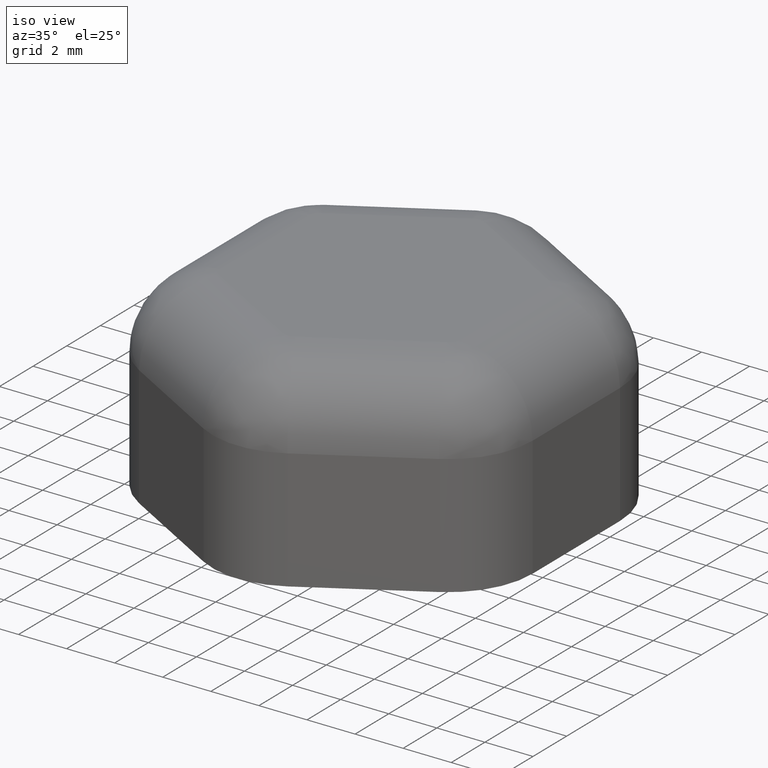
[diagram: clean part render]
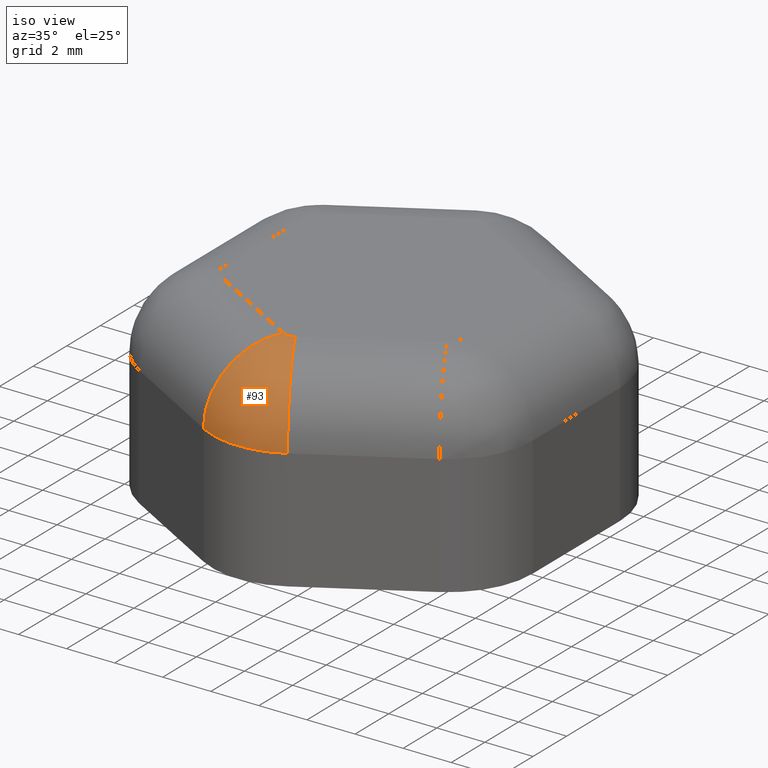
[diagram: same view with one face highlighted and labeled with its STEP entity id]
A machine part, iso view. The second image highlights one B-rep face of the part: STEP entity #93.
In plain terms, the highlighted face is a freeform B-spline surface patch.
Its self-contained STEP definition (entity closure, byte-faithful):
#93 = ADVANCED_FACE( '', ( #152 ), #153, .T. );
#152 = FACE_OUTER_BOUND( '', #231, .T. );
#153 = ( B_SPLINE_SURFACE( 3, 3, ( ( #233, #234, #235, #236 ), ( #237, #238, #239, #240 ), ( #241, #242, #243, #244 ), ( #245, #246, #247, #248 ) ), .UNSPECIFIED., .F., .F., .F. )B_SPLINE_SURFACE_WITH_KNOTS( ( 4, 4 ), ( 4, 4 ), ( 4.18879020478639, 5.23598775598299 ), ( -1.57079632679490, 0.000000000000000 ), .UNSPECIFIED. )RATIONAL_B_SPLINE_SURFACE( ( ( 1.00000000000000, 0.910683602522959, 0.910683602522959, 1.00000000000000 ), ( 0.804737854124365, 0.732861568080572, 0.732861568080572, 0.804737854124365 ), ( 0.804737854124365, 0.732861568080572, 0.732861568080572, 0.804737854124365 ), ( 1.00000000000000, 0.910683602522959, 0.910683602522959, 1.00000000000000 ) ) )BOUNDED_SURFACE(  )REPRESENTATION_ITEM( '' )GEOMETRIC_REPRESENTATION_ITEM(  )SURFACE(  ) );
#231 = EDGE_LOOP( '', ( #567, #568, #569, #570 ) );
#233 = CARTESIAN_POINT( '', ( 1.75000000000000, -8.22724133595217, 5.00000000000000 ) );
#234 = CARTESIAN_POINT( '', ( 0.640544456622772, -8.86778579257493, 5.00000000000000 ) );
#235 = CARTESIAN_POINT( '', ( -0.640544456622762, -8.86778579257493, 5.00000000000000 ) );
#236 = CARTESIAN_POINT( '', ( -1.74999999999999, -8.22724133595217, 5.00000000000000 ) );
#237 = CARTESIAN_POINT( '', ( 1.75000000000000, -8.22724133595217, 6.75735931288072 ) );
#238 = CARTESIAN_POINT( '', ( 0.640544456622772, -8.86778579257493, 6.75735931288071 ) );
#239 = CARTESIAN_POINT( '', ( -0.640544456622762, -8.86778579257493, 6.75735931288071 ) );
#240 = CARTESIAN_POINT( '', ( -1.74999999999999, -8.22724133595217, 6.75735931288072 ) );
#241 = CARTESIAN_POINT( '', ( 1.12867965644036, -7.15108293313072, 8.00000000000000 ) );
#242 = CARTESIAN_POINT( '', ( 0.413125426991866, -7.56420836012258, 8.00000000000000 ) );
#243 = CARTESIAN_POINT( '', ( -0.413125426991860, -7.56420836012258, 8.00000000000000 ) );
#244 = CARTESIAN_POINT( '', ( -1.12867965644035, -7.15108293313072, 8.00000000000000 ) );
#245 = CARTESIAN_POINT( '', ( 0.249999999999999, -5.62916512459885, 8.00000000000000 ) );
#246 = CARTESIAN_POINT( '', ( 0.0915063509461098, -5.72067147554496, 8.00000000000000 ) );
#247 = CARTESIAN_POINT( '', ( -0.0915063509461086, -5.72067147554496, 8.00000000000000 ) );
#248 = CARTESIAN_POINT( '', ( -0.249999999999999, -5.62916512459885, 8.00000000000000 ) );
#567 = ORIENTED_EDGE( '', *, *, #773, .T. );
#568 = ORIENTED_EDGE( '', *, *, #752, .F. );
#569 = ORIENTED_EDGE( '', *, *, #772, .F. );
#570 = ORIENTED_EDGE( '', *, *, #759, .F. );
#752 = EDGE_CURVE( '', #890, #893, #894, .T. );
#759 = EDGE_CURVE( '', #903, #904, #905, .F. );
#772 = EDGE_CURVE( '', #904, #890, #928, .T. );
#773 = EDGE_CURVE( '', #903, #893, #929, .T. );
#890 = VERTEX_POINT( '', #1078 );
#893 = VERTEX_POINT( '', #1083 );
#894 = CIRCLE( '', #1084, 3.50000000000000 );
#903 = VERTEX_POINT( '', #1098 );
#904 = VERTEX_POINT( '', #1099 );
#905 = CIRCLE( '', #1100, 0.499999999999998 );
#928 = CIRCLE( '', #1129, 3.00000000000000 );
#929 = CIRCLE( '', #1130, 3.00000000000000 );
#1078 = CARTESIAN_POINT( '', ( 1.75000000000000, -8.22724133595217, 5.00000000000000 ) );
#1083 = CARTESIAN_POINT( '', ( -1.75000000000000, -8.22724133595217, 5.00000000000000 ) );
#1084 = AXIS2_PLACEMENT_3D( '', #1258, #1259, #1260 );
#1098 = CARTESIAN_POINT( '', ( -0.249999999999999, -5.62916512459885, 8.00000000000000 ) );
#1099 = CARTESIAN_POINT( '', ( 0.250000000000001, -5.62916512459885, 8.00000000000000 ) );
#1100 = AXIS2_PLACEMENT_3D( '', #1269, #1270, #1271 );
#1129 = AXIS2_PLACEMENT_3D( '', #1296, #1297, #1298 );
#1130 = AXIS2_PLACEMENT_3D( '', #1299, #1300, #1301 );
#1258 = CARTESIAN_POINT( '', ( 2.55058561077215E-016, -5.19615242270663, 5.00000000000000 ) );
#1259 = DIRECTION( '', ( 1.22460635382238E-016, 0.000000000000000, -1.00000000000000 ) );
#1260 = DIRECTION( '', ( -1.00000000000000, 0.000000000000000, -1.22460635382238E-016 ) );
#1269 = CARTESIAN_POINT( '', ( -1.12323345069498E-016, -5.19615242270663, 8.00000000000000 ) );
#1270 = DIRECTION( '', ( 1.22460635382238E-016, 0.000000000000000, -1.00000000000000 ) );
#1271 = DIRECTION( '', ( -1.00000000000000, 0.000000000000000, -1.22460635382238E-016 ) );
#1296 = CARTESIAN_POINT( '', ( 0.250000000000001, -5.62916512459885, 5.00000000000000 ) );
#1297 = DIRECTION( '', ( 0.866025403784439, 0.500000000000000, 1.06054021204601E-016 ) );
#1298 = DIRECTION( '', ( 0.500000000000000, -0.866025403784439, 6.12303176911189E-017 ) );
#1299 = CARTESIAN_POINT( '', ( -0.249999999999998, -5.62916512459885, 5.00000000000000 ) );
#1300 = DIRECTION( '', ( 0.866025403784439, -0.500000000000000, 1.06054021204601E-016 ) );
#1301 = DIRECTION( '', ( -0.500000000000000, -0.866025403784439, -6.12303176911188E-017 ) );